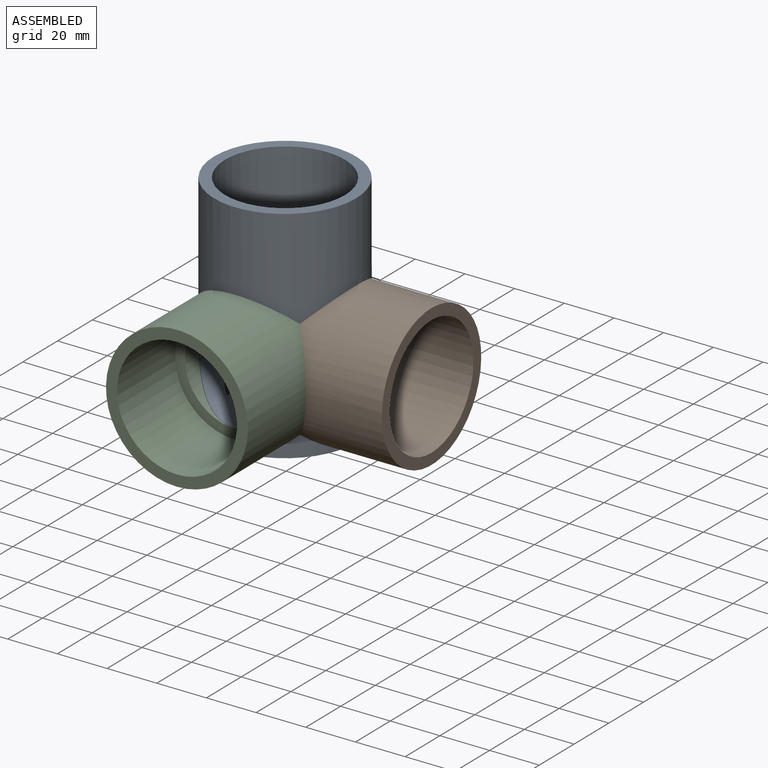
[diagram: assembled view]
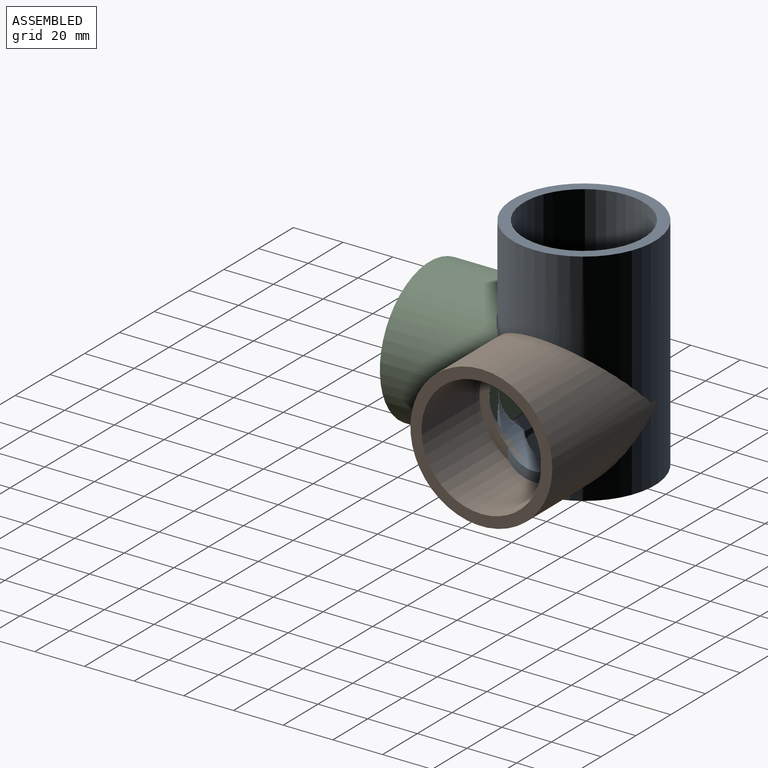
[diagram: assembled view, second angle]
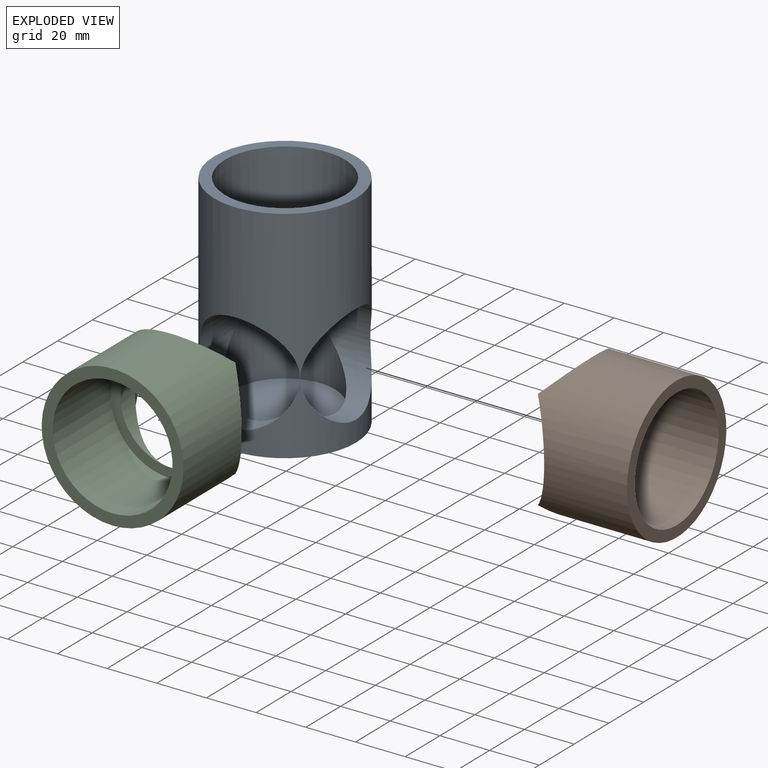
[diagram: exploded view]
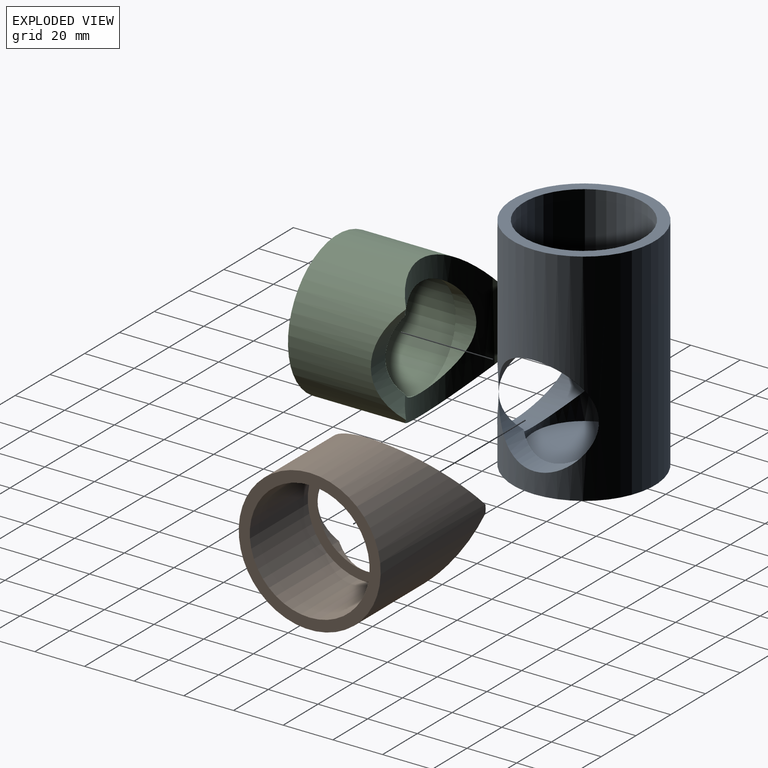
[diagram: exploded view, second angle]
ASSEMBLY  parts=3 mates=2
PART A: 9 faces, bbox 57.2x88.9x57.2 mm
  f0: cylinder r=28.57mm len=88.9mm, axis (0,-1,0), area 13197.1mm2, adj f1,f2,f7,f8
  f1: plane 57.15x57.15mm, normal (0,1,0), area 2565.2mm2, adj f0
  f2: plane 57.15x57.15mm, normal (0,-1,0), area 736mm2, adj f0,f3
  f3: cylinder r=24.13mm len=48.26mm, axis (0,-1,0), area 5054.4mm2, adj f2,f4
  f4: plane 48.26x48.26mm, normal (0,-1,0), area 548.2mm2, adj f3,f5
  f5: cylinder r=20.19mm len=49.21mm, axis (0,-1,0), area 3459.6mm2, adj f4,f6,f7,f8
  f6: plane 40.39x40.39mm, normal (0,-1,0), area 1281mm2, adj f5
  f7: cylinder r=20.19mm len=40.39mm, axis (0,0,1), area 1150.2mm2, adj f0,f5,f8
  f8: cylinder r=20.19mm len=40.39mm, axis (1,0,0), area 1150.2mm2, adj f0,f5,f7
PART B: 8 faces, bbox 57.2x60.3x57.2 mm
  f0: cylinder r=20.19mm len=40.39mm, axis (0,1,0), area 341.1mm2, adj f5,f6,f7
  f1: cylinder r=28.57mm len=60.33mm, axis (0,1,0), area 7173.1mm2, adj f2,f3,f6,f7
  f2: plane 57.15x57.15mm, normal (0,-1,0), area 736mm2, adj f1,f4
  f3: plane 3.2x0.05mm, normal (0,1,0), area 0.1mm2, adj f1,f6
  f4: cylinder r=24.13mm len=48.26mm, axis (0,-1,0), area 5054.4mm2, adj f2,f5
  f5: plane 48.26x48.26mm, normal (0,-1,0), area 548.2mm2, adj f0,f4
  f6: cylinder r=28.57mm len=57.18mm, axis (0,0,1), area 1287.9mm2, adj f0,f1,f3,f7
  f7: cylinder r=28.57mm len=40.41mm, axis (1,0,0), area 348.3mm2, adj f0,f1,f6
PART C: same geometry as B
PLACE A rot(axis=(-0.58,0.58,-0.58),120deg) t=(60.46,67.37,60.99)mm
PLACE B rot(axis=(0.71,-0.71,0),180deg) t=(59.11,67.37,0.67)mm
PLACE C t=(60.46,65.54,0.71)mm
MATE fastened A.f7 <-> B.f1  axis (1,0,0) through (89.27,67.37,0.67)mm
MATE fastened A.f8 <-> C.f4  axis (0,-1,0) through (60.46,38.55,0.71)mm
